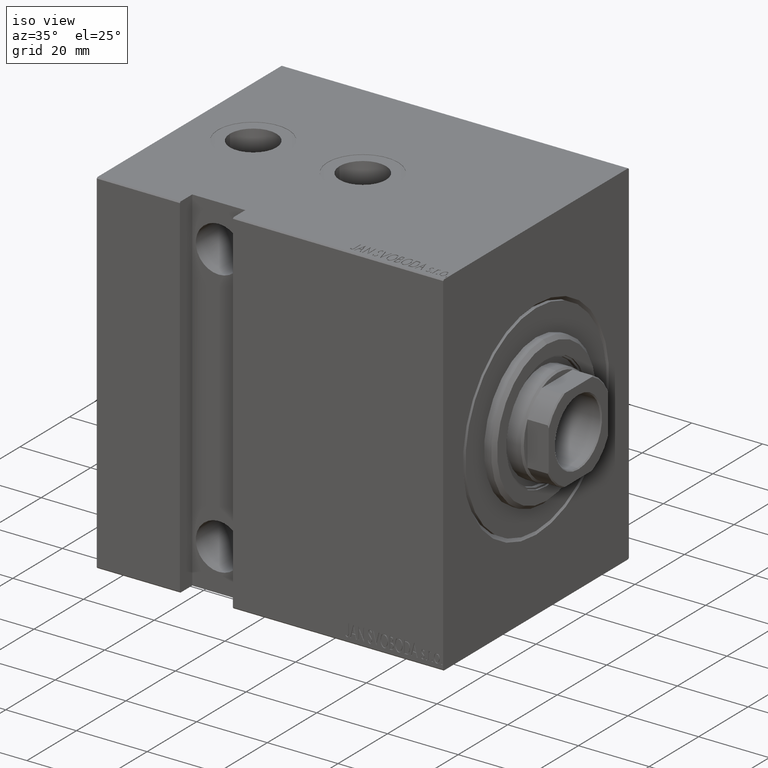
[diagram: clean part render]
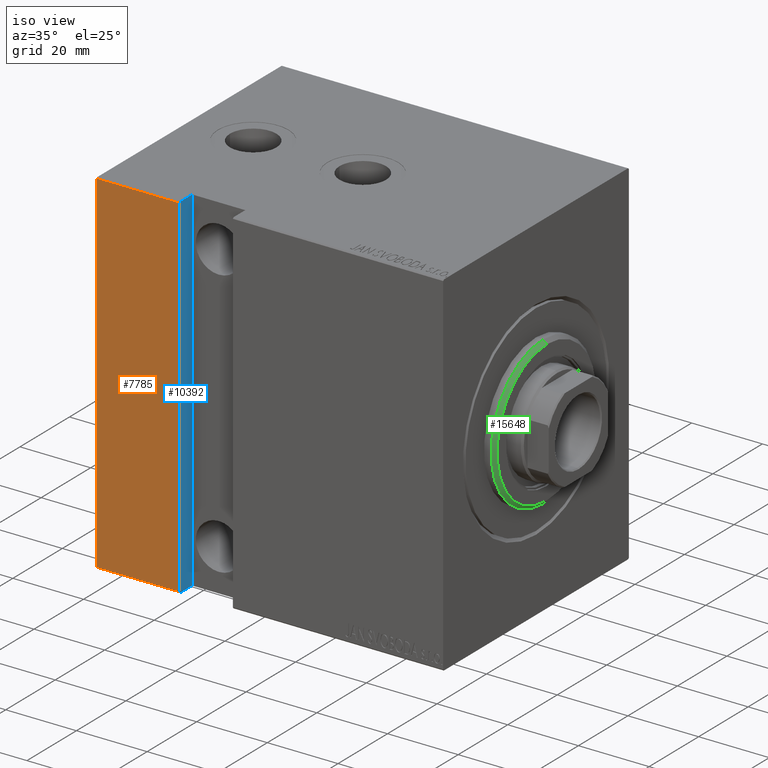
[diagram: same view with three faces highlighted in distinct colors, each labeled with its STEP entity id]
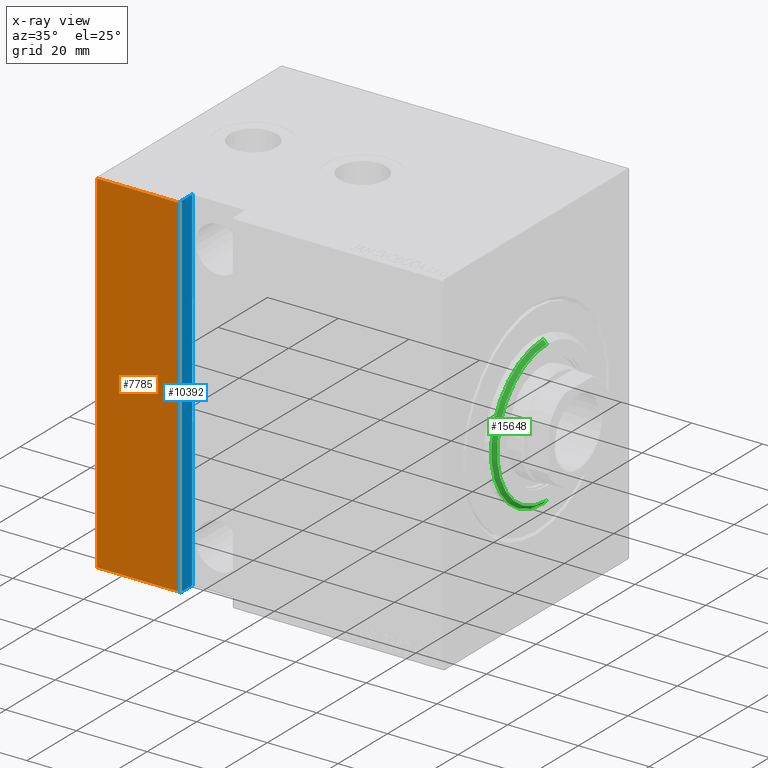
[diagram: x-ray of the same camera — body ghosted, the three highlighted faces saturated]
A machine part, iso view with three faces highlighted in distinct colors.
The next image is the same camera in x-ray (body ghosted, the three faces saturated) — at least one of them is partly hidden behind the body in this view.
Their STEP definitions:

[orange] entity #7785 — the highlighted planar face has unit normal (-0, 1, -0).
#128 = EDGE_CURVE ( 'NONE', #13432, #30320, #33626, .T. ) ;
#3424 = CARTESIAN_POINT ( 'NONE',  ( 98.00000000000000000, 37.49999999999998579, 49.70000000000000995 ) ) ;
#5074 = EDGE_CURVE ( 'NONE', #40640, #30320, #26839, .T. ) ;
#6656 = CARTESIAN_POINT ( 'NONE',  ( 74.50000000000002842, 37.49999999999999289, 49.70000000000000995 ) ) ;
#7510 = VERTEX_POINT ( 'NONE', #3424 ) ;
#7785 = ADVANCED_FACE ( 'NONE', ( #17641 ), #24461, .F. ) ;
#8524 = ORIENTED_EDGE ( 'NONE', *, *, #128, .T. ) ;
#10172 = CARTESIAN_POINT ( 'NONE',  ( 98.00000000000000000, 37.50000000000000000, -50.00000000000000000 ) ) ;
#11502 = ORIENTED_EDGE ( 'NONE', *, *, #5074, .F. ) ;
#13432 = VERTEX_POINT ( 'NONE', #42578 ) ;
#13434 = LINE ( 'NONE', #26619, #44437 ) ;
#15838 = CARTESIAN_POINT ( 'NONE',  ( 74.50000000000001421, 37.49999999999999289, -49.69999999999999574 ) ) ;
#17641 = FACE_OUTER_BOUND ( 'NONE', #23969, .T. ) ;
#18276 = EDGE_CURVE ( 'NONE', #40640, #7510, #13434, .T. ) ;
#18501 = ORIENTED_EDGE ( 'NONE', *, *, #40934, .F. ) ;
#23969 = EDGE_LOOP ( 'NONE', ( #18501, #8524, #11502, #24352 ) ) ;
#24285 = CARTESIAN_POINT ( 'NONE',  ( 98.00000000000000000, 37.50000000000000000, -50.00000000000000000 ) ) ;
#24352 = ORIENTED_EDGE ( 'NONE', *, *, #18276, .T. ) ;
#24461 = PLANE ( 'NONE',  #44876 ) ;
#24965 = DIRECTION ( 'NONE',  ( 0.000000000000000000, -1.387778780781445429E-16, 1.000000000000000000 ) ) ;
#26588 = CARTESIAN_POINT ( 'NONE',  ( 98.00000000000000000, 37.50000000000000000, -49.69999999999999574 ) ) ;
#26619 = CARTESIAN_POINT ( 'NONE',  ( 98.00000000000000000, 37.49999999999998579, 49.70000000000000995 ) ) ;
#26839 = LINE ( 'NONE', #40675, #43357 ) ;
#27289 = DIRECTION ( 'NONE',  ( 1.000000000000000000, 0.000000000000000000, 0.000000000000000000 ) ) ;
#28096 = DIRECTION ( 'NONE',  ( 0.000000000000000000, -1.000000000000000000, -1.387778780781445429E-16 ) ) ;
#30320 = VERTEX_POINT ( 'NONE', #15838 ) ;
#31774 = LINE ( 'NONE', #24285, #34504 ) ;
#33626 = LINE ( 'NONE', #26588, #35258 ) ;
#34504 = VECTOR ( 'NONE', #24965, 1000.000000000000000 ) ;
#35258 = VECTOR ( 'NONE', #37905, 1000.000000000000000 ) ;
#37863 = DIRECTION ( 'NONE',  ( 0.000000000000000000, 1.387778780781445429E-16, -1.000000000000000000 ) ) ;
#37905 = DIRECTION ( 'NONE',  ( -1.000000000000000000, 0.000000000000000000, 0.000000000000000000 ) ) ;
#40445 = DIRECTION ( 'NONE',  ( -1.387778780781445429E-16, -0.000000000000000000, -1.000000000000000000 ) ) ;
#40640 = VERTEX_POINT ( 'NONE', #6656 ) ;
#40675 = CARTESIAN_POINT ( 'NONE',  ( 74.50000000000001421, 37.49999999999999289, -50.00000000000000000 ) ) ;
#40934 = EDGE_CURVE ( 'NONE', #13432, #7510, #31774, .T. ) ;
#42578 = CARTESIAN_POINT ( 'NONE',  ( 98.00000000000000000, 37.50000000000000000, -49.69999999999999574 ) ) ;
#43357 = VECTOR ( 'NONE', #40445, 1000.000000000000000 ) ;
#44437 = VECTOR ( 'NONE', #27289, 1000.000000000000000 ) ;
#44876 = AXIS2_PLACEMENT_3D ( 'NONE', #10172, #28096, #37863 ) ;

[blue] entity #10392 — the highlighted planar face has unit normal (-1, 0, -0).
#1053 = DIRECTION ( 'NONE',  ( -9.813077866773594484E-17, -0.7071067811865474617, -0.7071067811865474617 ) ) ;
#1619 = CARTESIAN_POINT ( 'NONE',  ( 74.50000000000002842, 32.49999999999999289, 50.00000000000001421 ) ) ;
#2605 = ORIENTED_EDGE ( 'NONE', *, *, #3578, .F. ) ;
#3578 = EDGE_CURVE ( 'NONE', #18128, #27734, #42992, .T. ) ;
#5074 = EDGE_CURVE ( 'NONE', #40640, #30320, #26839, .T. ) ;
#5341 = CARTESIAN_POINT ( 'NONE',  ( 74.50000000000001421, 37.50000000000000000, -49.69999999999999574 ) ) ;
#6335 = DIRECTION ( 'NONE',  ( -9.813077866773594484E-17, 0.7071067811865474617, -0.7071067811865474617 ) ) ;
#6656 = CARTESIAN_POINT ( 'NONE',  ( 74.50000000000002842, 37.49999999999999289, 49.70000000000000995 ) ) ;
#7638 = EDGE_CURVE ( 'NONE', #41953, #40640, #18143, .T. ) ;
#10392 = ADVANCED_FACE ( 'NONE', ( #39181 ), #42141, .F. ) ;
#11380 = ORIENTED_EDGE ( 'NONE', *, *, #17128, .T. ) ;
#12187 = VECTOR ( 'NONE', #15513, 1000.000000000000000 ) ;
#14554 = DIRECTION ( 'NONE',  ( -0.000000000000000000, 1.000000000000000000, -0.000000000000000000 ) ) ;
#14595 = CARTESIAN_POINT ( 'NONE',  ( 74.50000000000002842, 32.49999999999999289, 50.00000000000001421 ) ) ;
#15447 = ORIENTED_EDGE ( 'NONE', *, *, #5074, .T. ) ;
#15513 = DIRECTION ( 'NONE',  ( -1.387778780781445429E-16, -0.000000000000000000, -1.000000000000000000 ) ) ;
#15838 = CARTESIAN_POINT ( 'NONE',  ( 74.50000000000001421, 37.49999999999999289, -49.69999999999999574 ) ) ;
#17128 = EDGE_CURVE ( 'NONE', #30320, #42302, #18281, .T. ) ;
#18128 = VERTEX_POINT ( 'NONE', #14595 ) ;
#18143 = LINE ( 'NONE', #40605, #33286 ) ;
#18281 = LINE ( 'NONE', #5341, #37779 ) ;
#22987 = EDGE_CURVE ( 'NONE', #27734, #42302, #34970, .T. ) ;
#23639 = ORIENTED_EDGE ( 'NONE', *, *, #7638, .T. ) ;
#24090 = DIRECTION ( 'NONE',  ( -0.000000000000000000, 1.000000000000000000, -0.000000000000000000 ) ) ;
#25081 = ORIENTED_EDGE ( 'NONE', *, *, #35050, .T. ) ;
#26123 = AXIS2_PLACEMENT_3D ( 'NONE', #28302, #35110, #38505 ) ;
#26754 = EDGE_LOOP ( 'NONE', ( #15447, #11380, #32954, #2605, #25081, #23639 ) ) ;
#26839 = LINE ( 'NONE', #40675, #43357 ) ;
#27734 = VERTEX_POINT ( 'NONE', #28499 ) ;
#27939 = CARTESIAN_POINT ( 'NONE',  ( 74.50000000000001421, 32.49999999999999289, -50.00000000000000000 ) ) ;
#28302 = CARTESIAN_POINT ( 'NONE',  ( 74.50000000000001421, 32.49999999999999289, -50.00000000000000000 ) ) ;
#28499 = CARTESIAN_POINT ( 'NONE',  ( 74.50000000000002842, 32.49999999999999289, -50.00000000000000000 ) ) ;
#29829 = CARTESIAN_POINT ( 'NONE',  ( 74.50000000000001421, 32.49999999999999289, -50.00000000000000000 ) ) ;
#30320 = VERTEX_POINT ( 'NONE', #15838 ) ;
#32181 = VECTOR ( 'NONE', #14554, 1000.000000000000000 ) ;
#32954 = ORIENTED_EDGE ( 'NONE', *, *, #22987, .F. ) ;
#33286 = VECTOR ( 'NONE', #6335, 1000.000000000000114 ) ;
#34128 = VECTOR ( 'NONE', #24090, 1000.000000000000000 ) ;
#34970 = LINE ( 'NONE', #27939, #34128 ) ;
#35050 = EDGE_CURVE ( 'NONE', #18128, #41953, #42918, .T. ) ;
#35110 = DIRECTION ( 'NONE',  ( 1.000000000000000000, 0.000000000000000000, -1.387778780781445429E-16 ) ) ;
#37133 = CARTESIAN_POINT ( 'NONE',  ( 74.50000000000001421, 37.19999999999998863, -50.00000000000000000 ) ) ;
#37779 = VECTOR ( 'NONE', #1053, 1000.000000000000114 ) ;
#38505 = DIRECTION ( 'NONE',  ( -1.387778780781445429E-16, 0.000000000000000000, -1.000000000000000000 ) ) ;
#39181 = FACE_OUTER_BOUND ( 'NONE', #26754, .T. ) ;
#40445 = DIRECTION ( 'NONE',  ( -1.387778780781445429E-16, -0.000000000000000000, -1.000000000000000000 ) ) ;
#40597 = CARTESIAN_POINT ( 'NONE',  ( 74.50000000000002842, 37.19999999999997442, 50.00000000000001421 ) ) ;
#40605 = CARTESIAN_POINT ( 'NONE',  ( 74.50000000000002842, 37.19999999999997442, 50.00000000000001421 ) ) ;
#40640 = VERTEX_POINT ( 'NONE', #6656 ) ;
#40675 = CARTESIAN_POINT ( 'NONE',  ( 74.50000000000001421, 37.49999999999999289, -50.00000000000000000 ) ) ;
#41953 = VERTEX_POINT ( 'NONE', #40597 ) ;
#42141 = PLANE ( 'NONE',  #26123 ) ;
#42302 = VERTEX_POINT ( 'NONE', #37133 ) ;
#42918 = LINE ( 'NONE', #1619, #32181 ) ;
#42992 = LINE ( 'NONE', #29829, #12187 ) ;
#43357 = VECTOR ( 'NONE', #40445, 1000.000000000000000 ) ;

[green] entity #15648 — the highlighted conical surface has half-angle 45 deg.
#2933 = DIRECTION ( 'NONE',  ( 0.000000000000000000, 0.000000000000000000, 1.000000000000000000 ) ) ;
#3330 = ORIENTED_EDGE ( 'NONE', *, *, #41035, .F. ) ;
#6839 = DIRECTION ( 'NONE',  ( -1.000000000000000000, 0.000000000000000000, 0.000000000000000000 ) ) ;
#7276 = EDGE_CURVE ( 'NONE', #8791, #43173, #43383, .T. ) ;
#7538 = EDGE_CURVE ( 'NONE', #43173, #38528, #26785, .T. ) ;
#8791 = VERTEX_POINT ( 'NONE', #21006 ) ;
#12164 = CARTESIAN_POINT ( 'NONE',  ( 3.000000000000000000, 0.000000000000000000, 20.00000000000001776 ) ) ;
#13147 = CARTESIAN_POINT ( 'NONE',  ( 3.000000000000000000, 0.000000000000000000, 0.000000000000000000 ) ) ;
#14952 = DIRECTION ( 'NONE',  ( 0.000000000000000000, 0.000000000000000000, -1.000000000000000000 ) ) ;
#15144 = CARTESIAN_POINT ( 'NONE',  ( 3.000000000000000000, 0.000000000000000000, 20.00000000000001776 ) ) ;
#15463 = DIRECTION ( 'NONE',  ( -0.7071067811865500152, 8.659560562354903276E-17, -0.7071067811865451302 ) ) ;
#15648 = ADVANCED_FACE ( 'NONE', ( #19499 ), #27604, .T. ) ;
#17019 = ORIENTED_EDGE ( 'NONE', *, *, #27366, .T. ) ;
#17249 = DIRECTION ( 'NONE',  ( 0.000000000000000000, 0.000000000000000000, -1.000000000000000000 ) ) ;
#19499 = FACE_OUTER_BOUND ( 'NONE', #37458, .T. ) ;
#21006 = CARTESIAN_POINT ( 'NONE',  ( 3.000000000000000000, 2.510525938252075270E-15, -20.00000000000001776 ) ) ;
#21342 = CARTESIAN_POINT ( 'NONE',  ( 2.000000000000009770, 0.000000000000000000, 0.000000000000000000 ) ) ;
#22572 = VERTEX_POINT ( 'NONE', #12164 ) ;
#23888 = VECTOR ( 'NONE', #15463, 1000.000000000000114 ) ;
#23971 = AXIS2_PLACEMENT_3D ( 'NONE', #13147, #27438, #2933 ) ;
#24113 = VECTOR ( 'NONE', #28777, 1000.000000000000114 ) ;
#25149 = LINE ( 'NONE', #15144, #24113 ) ;
#25857 = CARTESIAN_POINT ( 'NONE',  ( 3.000000000000000000, 0.000000000000000000, 0.000000000000000000 ) ) ;
#26785 = CIRCLE ( 'NONE', #36182, 21.00000000000000000 ) ;
#27366 = EDGE_CURVE ( 'NONE', #22572, #38528, #25149, .T. ) ;
#27438 = DIRECTION ( 'NONE',  ( -1.000000000000000000, 0.000000000000000000, 0.000000000000000000 ) ) ;
#27604 = CONICAL_SURFACE ( 'NONE', #23971, 20.00000000000001776, 0.7853981633974447263 ) ;
#28777 = DIRECTION ( 'NONE',  ( -0.7071067811865500152, 0.000000000000000000, 0.7071067811865451302 ) ) ;
#32689 = CARTESIAN_POINT ( 'NONE',  ( 2.000000000000009770, 2.571758278209441661E-15, -21.00000000000000000 ) ) ;
#33053 = AXIS2_PLACEMENT_3D ( 'NONE', #25857, #42655, #14952 ) ;
#36182 = AXIS2_PLACEMENT_3D ( 'NONE', #21342, #6839, #17249 ) ;
#37458 = EDGE_LOOP ( 'NONE', ( #38413, #3330, #17019, #43200 ) ) ;
#38413 = ORIENTED_EDGE ( 'NONE', *, *, #7276, .F. ) ;
#38528 = VERTEX_POINT ( 'NONE', #41229 ) ;
#40300 = CIRCLE ( 'NONE', #33053, 20.00000000000001776 ) ;
#41035 = EDGE_CURVE ( 'NONE', #22572, #8791, #40300, .T. ) ;
#41229 = CARTESIAN_POINT ( 'NONE',  ( 2.000000000000009770, 0.000000000000000000, 21.00000000000000000 ) ) ;
#42655 = DIRECTION ( 'NONE',  ( 1.000000000000000000, -0.000000000000000000, 0.000000000000000000 ) ) ;
#42937 = CARTESIAN_POINT ( 'NONE',  ( 3.000000000000000000, 2.449293598294708880E-15, -20.00000000000001776 ) ) ;
#43173 = VERTEX_POINT ( 'NONE', #32689 ) ;
#43200 = ORIENTED_EDGE ( 'NONE', *, *, #7538, .F. ) ;
#43383 = LINE ( 'NONE', #42937, #23888 ) ;